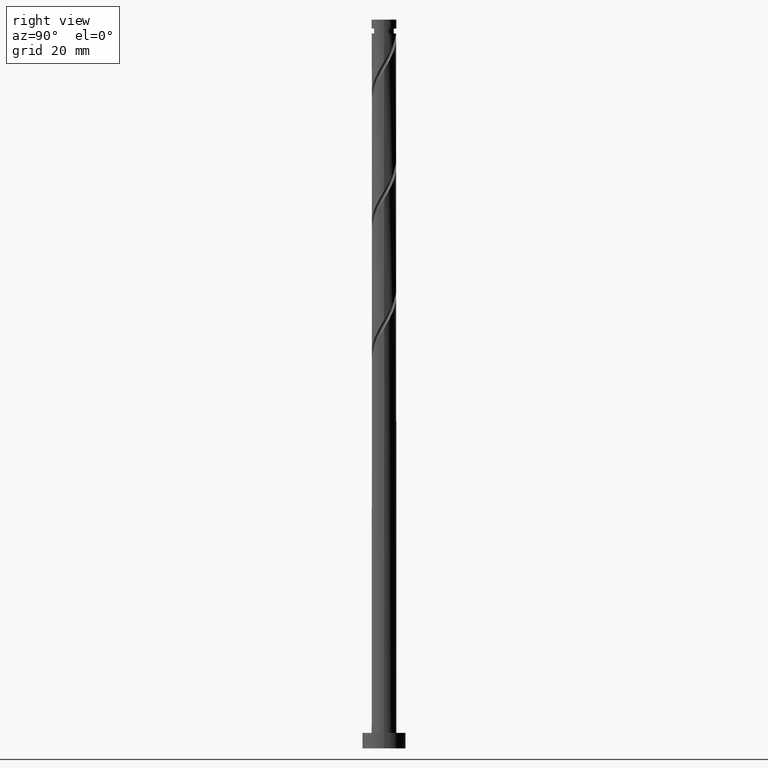
[diagram: clean part render]
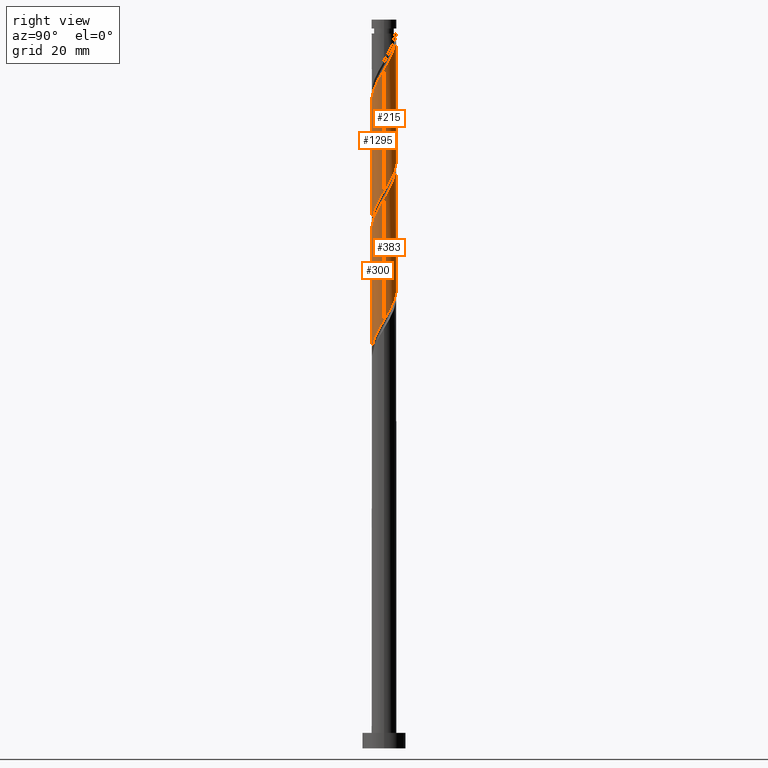
[diagram: same view with one multi-face feature highlighted, each face labeled with its STEP entity id]
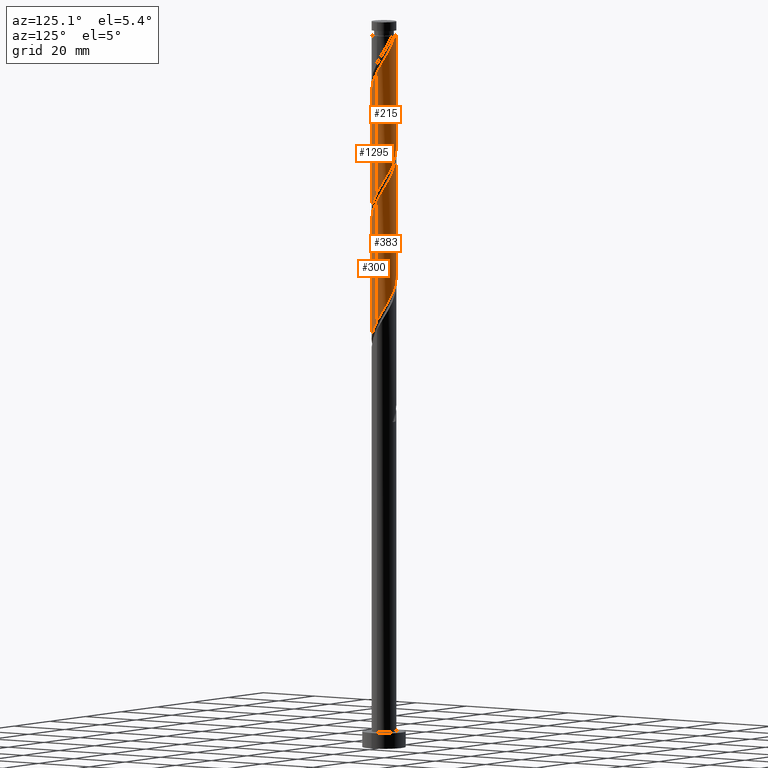
[diagram: same view with one multi-face feature highlighted, each face labeled with its STEP entity id]
A machine part, right view. The highlighted faces form ONE feature: a constant-radius fillet chain: 4 tangent blend faces with common blend radius 4 mm. The faces share edges in the B-rep.
A second angle (auxiliary view) of the same feature is appended — it is thin or edge-on in the first view.
Their STEP definitions:
[1] entity #300 (Cylinder):
#10 = CARTESIAN_POINT ( 'NONE',  ( 2.903067322541110329, -2.794296492670036436, 172.0295453672965493 ) ) ;
#14 = CARTESIAN_POINT ( 'NONE',  ( -1.710977332407543017, -3.615599060734964176, 124.7539043416555700 ) ) ;
#20 = CARTESIAN_POINT ( 'NONE',  ( -4.000000000000005329, -0.1590925213470726352, 156.5427174839607574 ) ) ;
#33 = CARTESIAN_POINT ( 'NONE',  ( 3.678270583471661581, -1.571726921181628933, 174.4333915211427382 ) ) ;
#38 = CARTESIAN_POINT ( 'NONE',  ( -1.271964123916561551, -3.823349321684220925, 125.5551863929375571 ) ) ;
#46 = VERTEX_POINT ( 'NONE', #882 ) ;
#54 = CARTESIAN_POINT ( 'NONE',  ( 2.526528931719818072, -3.101072646227875040, 171.2282633160145338 ) ) ;
#145 = CARTESIAN_POINT ( 'NONE',  ( -1.583270747538802148, -3.705286292331808173, 164.0167248544760525 ) ) ;
#170 = CARTESIAN_POINT ( 'NONE',  ( 1.583270747538797707, -3.705286292331802400, 130.3628787006298637 ) ) ;
#179 = CARTESIAN_POINT ( 'NONE',  ( 1.710977332407542795, -3.615599060734971726, 169.6256992134503889 ) ) ;
#192 = CARTESIAN_POINT ( 'NONE',  ( -0.3200157754540387534, -4.016650678315774492, 127.1577504955016877 ) ) ;
#226 = CARTESIAN_POINT ( 'NONE',  ( -3.947525597521974294, -0.6457876252366374636, 118.3436479313991470 ) ) ;
#238 = CARTESIAN_POINT ( 'NONE',  ( -3.999999999999998224, 5.339270056383372982E-15, 117.2677236534448184 ) ) ;
#257 = CARTESIAN_POINT ( 'NONE',  ( -4.000000000000005329, -3.709072756255089963E-15, 156.2785465683278119 ) ) ;
#258 = LINE ( 'NONE', #817, #902 ) ;
#291 = CARTESIAN_POINT ( 'NONE',  ( -3.987364772516044376, -0.3176825001445928165, 156.8051863929375997 ) ) ;
#300 = ADVANCED_FACE ( 'NONE', ( #851 ), #430, .T. ) ;
#322 = CARTESIAN_POINT ( 'NONE',  ( -3.795472800412709624, -1.262690073346326658, 158.4077504955017162 ) ) ;
#340 = CARTESIAN_POINT ( 'NONE',  ( 0.1652574756069088158, -3.996584787885279599, 127.9590325467837317 ) ) ;
#343 = CARTESIAN_POINT ( 'NONE',  ( -3.999999999999998224, 5.339270056383372193E-15, 117.2677236534448184 ) ) ;
#430 = CYLINDRICAL_SURFACE ( 'NONE', #1807, 4.000000000000000000 ) ;
#434 = CARTESIAN_POINT ( 'NONE',  ( -3.123849022751426396, -2.545085470315099574, 160.8115966493478197 ) ) ;
#459 = CARTESIAN_POINT ( 'NONE',  ( 3.999999999999999112, -0.1590925213470733013, 137.8368860711452157 ) ) ;
#495 = CARTESIAN_POINT ( 'NONE',  ( -2.903067322541106332, -2.794296492670029775, 122.3500581878093811 ) ) ;
#503 = VERTEX_POINT ( 'NONE', #343 ) ;
#577 = DIRECTION ( 'NONE',  ( -0.000000000000000000, -0.000000000000000000, -1.000000000000000000 ) ) ;
#592 = CARTESIAN_POINT ( 'NONE',  ( -3.948791133313483304, -0.8018362386540690556, 157.6064684442196722 ) ) ;
#595 = CARTESIAN_POINT ( 'NONE',  ( -2.526528931719815851, -3.101072646227869267, 123.1513402390914393 ) ) ;
#599 = CARTESIAN_POINT ( 'NONE',  ( -3.642154467511935945, -1.723543908038585926, 159.2090325467837602 ) ) ;
#612 = CARTESIAN_POINT ( 'NONE',  ( -2.149990540898524927, -3.407848799785708760, 123.9526222903734975 ) ) ;
#624 = EDGE_LOOP ( 'NONE', ( #1561, #1027, #1634, #1161 ) ) ;
#637 = CARTESIAN_POINT ( 'NONE',  ( 3.383001745131675175, -2.134314689176841195, 134.3692889570401690 ) ) ;
#728 = CARTESIAN_POINT ( 'NONE',  ( 4.000000000000000000, 4.898587196589412829E-16, 235.0000000000000284 ) ) ;
#744 = CARTESIAN_POINT ( 'NONE',  ( 3.642154467511929283, -1.723543908038582817, 135.1705710083221845 ) ) ;
#766 = CARTESIAN_POINT ( 'NONE',  ( -2.423996827517798103, -3.218715916066176685, 162.4141607519119646 ) ) ;
#797 = CARTESIAN_POINT ( 'NONE',  ( -3.869112783325347138, -1.125104012108395279, 119.1449299826811767 ) ) ;
#817 = CARTESIAN_POINT ( 'NONE',  ( -4.000000000000000000, 0.000000000000000000, 235.0000000000000284 ) ) ;
#851 = FACE_OUTER_BOUND ( 'NONE', #624, .T. ) ;
#864 = CARTESIAN_POINT ( 'NONE',  ( 3.487428383617971139, -2.018349830254860588, 173.6321094698606657 ) ) ;
#869 = CARTESIAN_POINT ( 'NONE',  ( -3.487428383617966698, -2.018349830254853483, 120.7474940852452647 ) ) ;
#875 = CARTESIAN_POINT ( 'NONE',  ( -2.773922925134612694, -2.881900693190638130, 161.6128787006298353 ) ) ;
#882 = CARTESIAN_POINT ( 'NONE',  ( 4.000000000000005329, 3.140747091990197197E-15, 177.1118799016610694 ) ) ;
#893 = VERTEX_POINT ( 'NONE', #257 ) ;
#902 = VECTOR ( 'NONE', #1672, 1000.000000000000000 ) ;
#912 = CARTESIAN_POINT ( 'NONE',  ( 0.6505307266678563849, -3.976518897454783374, 128.7603145980657757 ) ) ;
#941 = CARTESIAN_POINT ( 'NONE',  ( -3.678270583471656696, -1.571726921181625158, 119.9462120339632492 ) ) ;
#1006 =( BOUNDED_CURVE ( )  B_SPLINE_CURVE ( 2, ( #1618, #459, #1328, #1191, #1587, #744, #637, #1449, #1744, #1300, #1060, #170, #1610, #912, #340, #192, #1202, #38, #14, #612, #595, #495, #1071, #869, #941, #797, #226, #1225, #238 ),
 .UNSPECIFIED., .F., .T. ) 
 B_SPLINE_CURVE_WITH_KNOTS ( ( 3, 2, 2, 2, 2, 2, 2, 2, 2, 2, 2, 2, 2, 2, 3 ),
 ( 0.8045271625973832164, 0.8076923076923077094, 0.8173076923076922906, 0.8269230769230768718, 0.8365384615384615641, 0.8461538461538461453, 0.8557692307692307265, 0.8653846153846154188, 0.8750000000000000000, 0.8846153846153845812, 0.8942307692307692735, 0.9038461538461538547, 0.9134615384615384359, 0.9230769230769231282, 0.9295271625973835494 ),
 .UNSPECIFIED. ) 
 CURVE ( )  GEOMETRIC_REPRESENTATION_ITEM ( )  RATIONAL_B_SPLINE_CURVE ( ( 0.9061636035682786305, 0.9069090390690672798, 0.9090909090909238266, 0.9024626128164274785, 0.9090909090909238266, 0.9024626128164274785, 0.9090909090909238266, 0.9024626128164274785, 0.9090909090909238266, 0.9024626128164274785, 0.9090909090909238266, 0.9024626128164274785, 0.9090909090909238266, 0.9024626128164274785, 0.9090909090909238266, 0.9024626128164274785, 0.9090909090909238266, 0.9024626128164274785, 0.9090909090909238266, 0.9024626128164274785, 0.9090909090909238266, 0.9024626128164274785, 0.9090909090909238266, 0.9024626128164274785, 0.9090909090909238266, 0.9024626128164274785, 0.9090909090909238266, 0.9046444828382838033, 0.9061636035682788526 ) ) 
 REPRESENTATION_ITEM ( '' )  );
#1014 = CARTESIAN_POINT ( 'NONE',  ( -4.000000000000005329, -3.709072756255089963E-15, 156.2785465683278119 ) ) ;
#1022 = VERTEX_POINT ( 'NONE', #1316 ) ;
#1027 = ORIENTED_EDGE ( 'NONE', *, *, #1484, .F. ) ;
#1038 = LINE ( 'NONE', #728, #1690 ) ;
#1060 = CARTESIAN_POINT ( 'NONE',  ( 2.003633787528294796, -3.462001104198988877, 131.1641607519119646 ) ) ;
#1071 = CARTESIAN_POINT ( 'NONE',  ( -3.195247853079536959, -2.406323161462442073, 121.5487761365273371 ) ) ;
#1097 = EDGE_CURVE ( 'NONE', #46, #1022, #1038, .T. ) ;
#1107 = EDGE_CURVE ( 'NONE', #1022, #503, #1006, .T. ) ;
#1152 = CARTESIAN_POINT ( 'NONE',  ( 3.195247853079540512, -2.406323161462447402, 172.8308274185785933 ) ) ;
#1159 = CARTESIAN_POINT ( 'NONE',  ( 3.947525597521978291, -0.6457876252366412384, 176.0359556237067977 ) ) ;
#1161 = ORIENTED_EDGE ( 'NONE', *, *, #1107, .F. ) ;
#1166 = CARTESIAN_POINT ( 'NONE',  ( -3.383001745131681837, -2.134314689176842972, 160.0103145980658041 ) ) ;
#1187 = CARTESIAN_POINT ( 'NONE',  ( 0.7959899496852990142, -3.920000000000005258, 168.0231351108863294 ) ) ;
#1191 = CARTESIAN_POINT ( 'NONE',  ( 3.948791133313475754, -0.8018362386540693887, 136.7731351108863009 ) ) ;
#1202 = CARTESIAN_POINT ( 'NONE',  ( -0.7959899496852996803, -3.919999999999998153, 126.3564684442196580 ) ) ;
#1225 = CARTESIAN_POINT ( 'NONE',  ( -4.000000000000001776, -0.3250257541481672563, 117.8074243907931873 ) ) ;
#1297 = CARTESIAN_POINT ( 'NONE',  ( -2.003633787528300125, -3.462001104198992429, 163.2154428031940085 ) ) ;
#1300 = CARTESIAN_POINT ( 'NONE',  ( 2.423996827517791885, -3.218715916066174021, 131.9654428031939801 ) ) ;
#1316 = CARTESIAN_POINT ( 'NONE',  ( 3.999999999999999112, 4.232530604920153924E-15, 138.1010569867782181 ) ) ;
#1328 = CARTESIAN_POINT ( 'NONE',  ( 3.987364772516037270, -0.3176825001445965913, 137.5744171621683165 ) ) ;
#1340 = DIRECTION ( 'NONE',  ( -0.000000000000000000, -0.000000000000000000, -1.000000000000000000 ) ) ;
#1386 =( BOUNDED_CURVE ( )  B_SPLINE_CURVE ( 2, ( #1014, #20, #291, #592, #322, #599, #1166, #434, #875, #766, #1297, #145, #1469, #1741, #1573, #1711, #1187, #1719, #179, #1439, #54, #10, #1152, #864, #33, #1457, #1159, #1428, #1583 ),
 .UNSPECIFIED., .F., .T. ) 
 B_SPLINE_CURVE_WITH_KNOTS ( ( 3, 2, 2, 2, 2, 2, 2, 2, 2, 2, 2, 2, 2, 2, 3 ),
 ( 0.3045271625973832719, 0.3076923076923077094, 0.3173076923076922906, 0.3269230769230768718, 0.3365384615384615641, 0.3461538461538461453, 0.3557692307692307265, 0.3653846153846154188, 0.3750000000000000000, 0.3846153846153845812, 0.3942307692307692735, 0.4038461538461538547, 0.4134615384615384359, 0.4230769230769231282, 0.4295271625973834939 ),
 .UNSPECIFIED. ) 
 CURVE ( )  GEOMETRIC_REPRESENTATION_ITEM ( )  RATIONAL_B_SPLINE_CURVE ( ( 0.9061636035682849588, 0.9069090390690737191, 0.9090909090909303769, 0.9024626128164336958, 0.9090909090909303769, 0.9024626128164336958, 0.9090909090909303769, 0.9024626128164336958, 0.9090909090909303769, 0.9024626128164336958, 0.9090909090909303769, 0.9024626128164336958, 0.9090909090909303769, 0.9024626128164336958, 0.9090909090909303769, 0.9024626128164336958, 0.9090909090909303769, 0.9024626128164336958, 0.9090909090909303769, 0.9024626128164336958, 0.9090909090909303769, 0.9024626128164336958, 0.9090909090909303769, 0.9024626128164336958, 0.9090909090909303769, 0.9024626128164336958, 0.9090909090909303769, 0.9046444828382902426, 0.9061636035682851809 ) ) 
 REPRESENTATION_ITEM ( '' )  );
#1401 = CARTESIAN_POINT ( 'NONE',  ( 0.000000000000000000, 0.000000000000000000, 235.0000000000000284 ) ) ;
#1428 = CARTESIAN_POINT ( 'NONE',  ( 4.000000000000006217, -0.3250257541481718637, 176.5721791643128142 ) ) ;
#1439 = CARTESIAN_POINT ( 'NONE',  ( 2.149990540898526259, -3.407848799785715865, 170.4269812647324898 ) ) ;
#1449 = CARTESIAN_POINT ( 'NONE',  ( 3.123849022751419291, -2.545085470315097353, 133.5680069057580397 ) ) ;
#1457 = CARTESIAN_POINT ( 'NONE',  ( 3.869112783325352023, -1.125104012108400164, 175.2346735724247822 ) ) ;
#1469 = CARTESIAN_POINT ( 'NONE',  ( -1.116900737103331487, -3.840902594893298883, 164.8180069057580965 ) ) ;
#1484 = EDGE_CURVE ( 'NONE', #893, #46, #1386, .T. ) ;
#1544 = DIRECTION ( 'NONE',  ( -1.000000000000000000, 0.000000000000000000, 0.000000000000000000 ) ) ;
#1561 = ORIENTED_EDGE ( 'NONE', *, *, #1097, .F. ) ;
#1573 = CARTESIAN_POINT ( 'NONE',  ( -0.1652574756069124517, -3.996584787885285817, 166.4205710083221561 ) ) ;
#1583 = CARTESIAN_POINT ( 'NONE',  ( 4.000000000000005329, 3.140747091990197197E-15, 177.1118799016610694 ) ) ;
#1587 = CARTESIAN_POINT ( 'NONE',  ( 3.795472800412702075, -1.262690073346327768, 135.9718530596042285 ) ) ;
#1610 = CARTESIAN_POINT ( 'NONE',  ( 1.116900737103328378, -3.840902594893293109, 129.5615966493478481 ) ) ;
#1618 = CARTESIAN_POINT ( 'NONE',  ( 3.999999999999999112, 4.232530604920153924E-15, 138.1010569867782181 ) ) ;
#1634 = ORIENTED_EDGE ( 'NONE', *, *, #1791, .T. ) ;
#1672 = DIRECTION ( 'NONE',  ( -0.000000000000000000, -0.000000000000000000, -1.000000000000000000 ) ) ;
#1690 = VECTOR ( 'NONE', #1340, 1000.000000000000000 ) ;
#1711 = CARTESIAN_POINT ( 'NONE',  ( 0.3200157754540359778, -4.016650678315780709, 167.2218530596042285 ) ) ;
#1719 = CARTESIAN_POINT ( 'NONE',  ( 1.271964123916560885, -3.823349321684228919, 168.8244171621684018 ) ) ;
#1741 = CARTESIAN_POINT ( 'NONE',  ( -0.6505307266678609368, -3.976518897454789592, 165.6192889570401690 ) ) ;
#1744 = CARTESIAN_POINT ( 'NONE',  ( 2.773922925134606920, -2.881900693190635021, 132.7667248544760525 ) ) ;
#1791 = EDGE_CURVE ( 'NONE', #893, #503, #258, .T. ) ;
#1807 = AXIS2_PLACEMENT_3D ( 'NONE', #1401, #577, #1544 ) ;
[2] entity #383 (Cylinder):
#42 = CARTESIAN_POINT ( 'NONE',  ( -4.000000000000005329, 4.486781559985995327E-17, 197.9452132349944691 ) ) ;
#46 = VERTEX_POINT ( 'NONE', #882 ) ;
#75 = CARTESIAN_POINT ( 'NONE',  ( 3.948791133313483304, 0.8018362386540686115, 178.4398017775529866 ) ) ;
#81 = CARTESIAN_POINT ( 'NONE',  ( 3.678270583471657584, 1.571726921181624492, 140.7795453672965209 ) ) ;
#116 = CARTESIAN_POINT ( 'NONE',  ( 1.710977332407545237, 3.615599060734962844, 145.5872376749888701 ) ) ;
#168 = ORIENTED_EDGE ( 'NONE', *, *, #1766, .F. ) ;
#187 = CARTESIAN_POINT ( 'NONE',  ( 3.987364772516044376, 0.3176825001445913732, 177.6385197262709141 ) ) ;
#286 = DIRECTION ( 'NONE',  ( -1.000000000000000000, 0.000000000000000000, 0.000000000000000000 ) ) ;
#353 = CARTESIAN_POINT ( 'NONE',  ( 3.795472800412709624, 1.262690073346324660, 179.2410838288350590 ) ) ;
#376 = CARTESIAN_POINT ( 'NONE',  ( -1.116900737103328378, 3.840902594893293109, 150.3949299826811909 ) ) ;
#383 = ADVANCED_FACE ( 'NONE', ( #841 ), #1280, .T. ) ;
#392 = CARTESIAN_POINT ( 'NONE',  ( -4.000000000000000000, -5.817860089448548578E-15, 158.9343903201115324 ) ) ;
#454 = ORIENTED_EDGE ( 'NONE', *, *, #1759, .F. ) ;
#462 = CARTESIAN_POINT ( 'NONE',  ( -1.271964123916561551, 3.823349321684228919, 189.6577504955017446 ) ) ;
#464 =( BOUNDED_CURVE ( )  B_SPLINE_CURVE ( 2, ( #392, #1664, #973, #1119, #535, #1382, #1400, #1804, #1368, #800, #983, #549, #376, #528, #1811, #1796, #823, #1511, #116, #944, #1395, #1090, #678, #1524, #81, #697, #1102, #663, #518 ),
 .UNSPECIFIED., .F., .T. ) 
 B_SPLINE_CURVE_WITH_KNOTS ( ( 3, 2, 2, 2, 2, 2, 2, 2, 2, 2, 2, 2, 2, 2, 3 ),
 ( 0.6795271625973832164, 0.6826923076923077094, 0.6923076923076922906, 0.7019230769230768718, 0.7115384615384615641, 0.7211538461538461453, 0.7307692307692307265, 0.7403846153846154188, 0.7500000000000000000, 0.7596153846153845812, 0.7692307692307692735, 0.7788461538461538547, 0.7884615384615384359, 0.7980769230769231282, 0.8045271625973832164 ),
 .UNSPECIFIED. ) 
 CURVE ( )  GEOMETRIC_REPRESENTATION_ITEM ( )  RATIONAL_B_SPLINE_CURVE ( ( 0.9061636035682786305, 0.9069090390690672798, 0.9090909090909238266, 0.9024626128164274785, 0.9090909090909238266, 0.9024626128164274785, 0.9090909090909238266, 0.9024626128164274785, 0.9090909090909238266, 0.9024626128164274785, 0.9090909090909238266, 0.9024626128164274785, 0.9090909090909238266, 0.9024626128164274785, 0.9090909090909238266, 0.9024626128164274785, 0.9090909090909238266, 0.9024626128164274785, 0.9090909090909238266, 0.9024626128164274785, 0.9090909090909238266, 0.9024626128164274785, 0.9090909090909238266, 0.9024626128164274785, 0.9090909090909238266, 0.9024626128164274785, 0.9090909090909238266, 0.9046444828382840253, 0.9061636035682786305 ) ) 
 REPRESENTATION_ITEM ( '' )  );
#488 = CARTESIAN_POINT ( 'NONE',  ( -3.678270583471661581, 1.571726921181628933, 195.2667248544760525 ) ) ;
#500 = CARTESIAN_POINT ( 'NONE',  ( -2.149990540898527591, 3.407848799785715421, 191.2603145980658326 ) ) ;
#518 = CARTESIAN_POINT ( 'NONE',  ( 3.999999999999999112, 4.232530604920153924E-15, 138.1010569867782181 ) ) ;
#528 = CARTESIAN_POINT ( 'NONE',  ( -0.6505307266678578282, 3.976518897454783374, 149.5936479313990901 ) ) ;
#535 = CARTESIAN_POINT ( 'NONE',  ( -3.795472800412702519, 1.262690073346326880, 156.8051863929375997 ) ) ;
#549 = CARTESIAN_POINT ( 'NONE',  ( -1.583270747538798817, 3.705286292331802400, 151.1962120339632349 ) ) ;
#586 = VERTEX_POINT ( 'NONE', #1500 ) ;
#617 = CARTESIAN_POINT ( 'NONE',  ( -2.526528931719818960, 3.101072646227875040, 192.0615966493478481 ) ) ;
#642 = CARTESIAN_POINT ( 'NONE',  ( 3.383001745131681837, 2.134314689176843416, 180.8436479313991185 ) ) ;
#652 = ORIENTED_EDGE ( 'NONE', *, *, #1595, .F. ) ;
#663 = CARTESIAN_POINT ( 'NONE',  ( 3.999999999999998224, 0.3250257541481830770, 138.6407577241265301 ) ) ;
#678 = CARTESIAN_POINT ( 'NONE',  ( 3.195247853079536959, 2.406323161462441185, 142.3821094698607226 ) ) ;
#697 = CARTESIAN_POINT ( 'NONE',  ( 3.869112783325347138, 1.125104012108393059, 139.9782633160144769 ) ) ;
#728 = CARTESIAN_POINT ( 'NONE',  ( 4.000000000000000000, 4.898587196589412829E-16, 235.0000000000000284 ) ) ;
#761 = CARTESIAN_POINT ( 'NONE',  ( -3.195247853079541400, 2.406323161462446958, 193.6641607519119361 ) ) ;
#784 = CARTESIAN_POINT ( 'NONE',  ( 2.773922925134613582, 2.881900693190637686, 182.4462120339632065 ) ) ;
#792 = CARTESIAN_POINT ( 'NONE',  ( 2.423996827517799879, 3.218715916066175797, 183.2474940852452789 ) ) ;
#800 = CARTESIAN_POINT ( 'NONE',  ( -2.423996827517791885, 3.218715916066172689, 152.7987761365272945 ) ) ;
#823 = CARTESIAN_POINT ( 'NONE',  ( 0.7959899496853001244, 3.919999999999998153, 147.1898017775529866 ) ) ;
#829 =( BOUNDED_CURVE ( )  B_SPLINE_CURVE ( 2, ( #1747, #1042, #187, #75, #353, #1218, #642, #1763, #784, #792, #1319, #1494, #1080, #1065, #1590, #1074, #1466, #462, #1207, #500, #617, #1182, #761, #1769, #488, #1360, #1331, #891, #1621 ),
 .UNSPECIFIED., .F., .T. ) 
 B_SPLINE_CURVE_WITH_KNOTS ( ( 3, 2, 2, 2, 2, 2, 2, 2, 2, 2, 2, 2, 2, 2, 3 ),
 ( 0.4295271625973834939, 0.4326923076923077094, 0.4423076923076922906, 0.4519230769230768718, 0.4615384615384615641, 0.4711538461538461453, 0.4807692307692307265, 0.4903846153846154188, 0.5000000000000000000, 0.5096153846153845812, 0.5192307692307691624, 0.5288461538461538547, 0.5384615384615384359, 0.5480769230769231282, 0.5545271625973834384 ),
 .UNSPECIFIED. ) 
 CURVE ( )  GEOMETRIC_REPRESENTATION_ITEM ( )  RATIONAL_B_SPLINE_CURVE ( ( 0.9061636035682851809, 0.9069090390690739412, 0.9090909090909303769, 0.9024626128164336958, 0.9090909090909303769, 0.9024626128164336958, 0.9090909090909303769, 0.9024626128164336958, 0.9090909090909303769, 0.9024626128164336958, 0.9090909090909303769, 0.9024626128164336958, 0.9090909090909303769, 0.9024626128164336958, 0.9090909090909303769, 0.9024626128164336958, 0.9090909090909303769, 0.9024626128164336958, 0.9090909090909303769, 0.9024626128164336958, 0.9090909090909303769, 0.9024626128164336958, 0.9090909090909303769, 0.9024626128164336958, 0.9090909090909303769, 0.9024626128164336958, 0.9090909090909303769, 0.9046444828382902426, 0.9061636035682851809 ) ) 
 REPRESENTATION_ITEM ( '' )  );
#841 = FACE_OUTER_BOUND ( 'NONE', #1100, .T. ) ;
#882 = CARTESIAN_POINT ( 'NONE',  ( 4.000000000000005329, 3.140747091990197197E-15, 177.1118799016610694 ) ) ;
#891 = CARTESIAN_POINT ( 'NONE',  ( -4.000000000000006217, 0.3250257541481747503, 197.4055124976461286 ) ) ;
#944 = CARTESIAN_POINT ( 'NONE',  ( 2.149990540898525371, 3.407848799785708760, 144.7859556237068261 ) ) ;
#965 = AXIS2_PLACEMENT_3D ( 'NONE', #1409, #1827, #286 ) ;
#973 = CARTESIAN_POINT ( 'NONE',  ( -3.987364772516037270, 0.3176825001445944818, 158.4077504955016593 ) ) ;
#983 = CARTESIAN_POINT ( 'NONE',  ( -2.003633787528295240, 3.462001104198988877, 151.9974940852453074 ) ) ;
#1022 = VERTEX_POINT ( 'NONE', #1316 ) ;
#1038 = LINE ( 'NONE', #728, #1690 ) ;
#1042 = CARTESIAN_POINT ( 'NONE',  ( 4.000000000000004441, 0.1590925213470829880, 177.3760508172940717 ) ) ;
#1065 = CARTESIAN_POINT ( 'NONE',  ( 0.6505307266678614919, 3.976518897454789592, 186.4526222903735118 ) ) ;
#1074 = CARTESIAN_POINT ( 'NONE',  ( -0.3200157754540355892, 4.016650678315782486, 188.0551863929375997 ) ) ;
#1080 = CARTESIAN_POINT ( 'NONE',  ( 1.116900737103333263, 3.840902594893298883, 185.6513402390914678 ) ) ;
#1090 = CARTESIAN_POINT ( 'NONE',  ( 2.903067322541107220, 2.794296492670029775, 143.1833915211427382 ) ) ;
#1097 = EDGE_CURVE ( 'NONE', #46, #1022, #1038, .T. ) ;
#1100 = EDGE_LOOP ( 'NONE', ( #652, #1477, #454, #168 ) ) ;
#1102 = CARTESIAN_POINT ( 'NONE',  ( 3.947525597521974294, 0.6457876252366383518, 139.1769812647325182 ) ) ;
#1119 = CARTESIAN_POINT ( 'NONE',  ( -3.948791133313475754, 0.8018362386540688336, 157.6064684442196722 ) ) ;
#1182 = CARTESIAN_POINT ( 'NONE',  ( -2.903067322541111217, 2.794296492670035992, 192.8628787006298921 ) ) ;
#1207 = CARTESIAN_POINT ( 'NONE',  ( -1.710977332407544127, 3.615599060734970838, 190.4590325467837602 ) ) ;
#1218 = CARTESIAN_POINT ( 'NONE',  ( 3.642154467511936389, 1.723543908038583705, 180.0423658801171030 ) ) ;
#1280 = CYLINDRICAL_SURFACE ( 'NONE', #965, 4.000000000000000000 ) ;
#1316 = CARTESIAN_POINT ( 'NONE',  ( 3.999999999999999112, 4.232530604920153924E-15, 138.1010569867782181 ) ) ;
#1319 = CARTESIAN_POINT ( 'NONE',  ( 2.003633787528301013, 3.462001104198992429, 184.0487761365273229 ) ) ;
#1331 = CARTESIAN_POINT ( 'NONE',  ( -3.947525597521978291, 0.6457876252366409053, 196.8692889570401405 ) ) ;
#1340 = DIRECTION ( 'NONE',  ( -0.000000000000000000, -0.000000000000000000, -1.000000000000000000 ) ) ;
#1360 = CARTESIAN_POINT ( 'NONE',  ( -3.869112783325353799, 1.125104012108398388, 196.0680069057581534 ) ) ;
#1368 = CARTESIAN_POINT ( 'NONE',  ( -2.773922925134606920, 2.881900693190635021, 153.6000581878093669 ) ) ;
#1382 = CARTESIAN_POINT ( 'NONE',  ( -3.642154467511929283, 1.723543908038583483, 156.0039043416554989 ) ) ;
#1388 = CARTESIAN_POINT ( 'NONE',  ( -4.000000000000000000, 0.000000000000000000, 235.0000000000000284 ) ) ;
#1395 = CARTESIAN_POINT ( 'NONE',  ( 2.526528931719817628, 3.101072646227867491, 143.9846735724247253 ) ) ;
#1400 = CARTESIAN_POINT ( 'NONE',  ( -3.383001745131675175, 2.134314689176840751, 155.2026222903734833 ) ) ;
#1403 = VECTOR ( 'NONE', #1519, 1000.000000000000000 ) ;
#1409 = CARTESIAN_POINT ( 'NONE',  ( 0.000000000000000000, 0.000000000000000000, 235.0000000000000284 ) ) ;
#1466 = CARTESIAN_POINT ( 'NONE',  ( -0.7959899496852987921, 3.920000000000005258, 188.8564684442196437 ) ) ;
#1477 = ORIENTED_EDGE ( 'NONE', *, *, #1097, .T. ) ;
#1494 = CARTESIAN_POINT ( 'NONE',  ( 1.583270747538803036, 3.705286292331808173, 184.8500581878093669 ) ) ;
#1500 = CARTESIAN_POINT ( 'NONE',  ( -4.000000000000000000, -5.817860089448549367E-15, 158.9343903201115324 ) ) ;
#1511 = CARTESIAN_POINT ( 'NONE',  ( 1.271964123916561995, 3.823349321684220925, 146.3885197262708857 ) ) ;
#1519 = DIRECTION ( 'NONE',  ( -0.000000000000000000, -0.000000000000000000, -1.000000000000000000 ) ) ;
#1524 = CARTESIAN_POINT ( 'NONE',  ( 3.487428383617966698, 2.018349830254851707, 141.5808274185785933 ) ) ;
#1590 = CARTESIAN_POINT ( 'NONE',  ( 0.1652574756069146444, 3.996584787885285817, 187.2539043416555558 ) ) ;
#1595 = EDGE_CURVE ( 'NONE', #46, #1652, #829, .T. ) ;
#1621 = CARTESIAN_POINT ( 'NONE',  ( -4.000000000000005329, 4.486781559985995327E-17, 197.9452132349944691 ) ) ;
#1652 = VERTEX_POINT ( 'NONE', #42 ) ;
#1664 = CARTESIAN_POINT ( 'NONE',  ( -3.999999999999999112, 0.1590925213470713584, 158.6702194044785017 ) ) ;
#1690 = VECTOR ( 'NONE', #1340, 1000.000000000000000 ) ;
#1747 = CARTESIAN_POINT ( 'NONE',  ( 4.000000000000005329, 3.140747091990197197E-15, 177.1118799016610694 ) ) ;
#1759 = EDGE_CURVE ( 'NONE', #586, #1022, #464, .T. ) ;
#1763 = CARTESIAN_POINT ( 'NONE',  ( 3.123849022751427729, 2.545085470315096909, 181.6449299826811341 ) ) ;
#1766 = EDGE_CURVE ( 'NONE', #1652, #586, #1778, .T. ) ;
#1769 = CARTESIAN_POINT ( 'NONE',  ( -3.487428383617972028, 2.018349830254859700, 194.4654428031940370 ) ) ;
#1778 = LINE ( 'NONE', #1388, #1403 ) ;
#1796 = CARTESIAN_POINT ( 'NONE',  ( 0.3200157754540378652, 4.016650678315774492, 147.9910838288350021 ) ) ;
#1804 = CARTESIAN_POINT ( 'NONE',  ( -3.123849022751420179, 2.545085470315096465, 154.4013402390914962 ) ) ;
#1811 = CARTESIAN_POINT ( 'NONE',  ( -0.1652574756069100093, 3.996584787885279599, 148.7923658801170461 ) ) ;
#1827 = DIRECTION ( 'NONE',  ( -0.000000000000000000, -0.000000000000000000, -1.000000000000000000 ) ) ;
[3] entity #1295 (Cylinder):
#42 = CARTESIAN_POINT ( 'NONE',  ( -4.000000000000005329, 4.486781559985995327E-17, 197.9452132349944691 ) ) ;
#82 = CARTESIAN_POINT ( 'NONE',  ( 4.000000000000002665, -0.3250257541481968993, 218.2388458309794146 ) ) ;
#100 = CARTESIAN_POINT ( 'NONE',  ( -0.3200157754540387534, -4.016650678315774492, 168.8244171621683734 ) ) ;
#104 = EDGE_CURVE ( 'NONE', #1652, #399, #1736, .T. ) ;
#106 = CARTESIAN_POINT ( 'NONE',  ( 3.999999999999999112, 4.232530604920153924E-15, 179.7677236534448468 ) ) ;
#135 = CARTESIAN_POINT ( 'NONE',  ( 4.000000000000000000, 4.898587196589412829E-16, 235.0000000000000284 ) ) ;
#189 = CARTESIAN_POINT ( 'NONE',  ( -4.000000000000005329, 4.486781559985995327E-17, 197.9452132349944691 ) ) ;
#218 = CARTESIAN_POINT ( 'NONE',  ( 2.773922925134606920, -2.881900693190635021, 174.4333915211427950 ) ) ;
#219 = CARTESIAN_POINT ( 'NONE',  ( 3.487428383617971139, -2.018349830254860588, 215.2987761365273514 ) ) ;
#229 = CARTESIAN_POINT ( 'NONE',  ( 3.948791133313475754, -0.8018362386540693887, 178.4398017775529581 ) ) ;
#242 = CARTESIAN_POINT ( 'NONE',  ( -3.487428383617966698, -2.018349830254853483, 162.4141607519119361 ) ) ;
#243 = CARTESIAN_POINT ( 'NONE',  ( 3.678270583471661581, -1.571726921181628933, 216.1000581878093953 ) ) ;
#248 = FACE_OUTER_BOUND ( 'NONE', #348, .T. ) ;
#253 = CARTESIAN_POINT ( 'NONE',  ( -1.116900737103331487, -3.840902594893298883, 206.4846735724247537 ) ) ;
#256 = LINE ( 'NONE', #135, #267 ) ;
#267 = VECTOR ( 'NONE', #561, 1000.000000000000000 ) ;
#324 = VERTEX_POINT ( 'NONE', #410 ) ;
#348 = EDGE_LOOP ( 'NONE', ( #646, #978, #777, #457 ) ) ;
#367 = CARTESIAN_POINT ( 'NONE',  ( 3.987364772516037270, -0.3176825001445965913, 179.2410838288349737 ) ) ;
#377 = CARTESIAN_POINT ( 'NONE',  ( -0.1652574756069124517, -3.996584787885285817, 208.0872376749888417 ) ) ;
#387 = CARTESIAN_POINT ( 'NONE',  ( -2.526528931719815851, -3.101072646227869267, 164.8180069057581250 ) ) ;
#399 = VERTEX_POINT ( 'NONE', #1308 ) ;
#401 = CARTESIAN_POINT ( 'NONE',  ( 3.123849022751419291, -2.545085470315097353, 175.2346735724247537 ) ) ;
#410 = CARTESIAN_POINT ( 'NONE',  ( 3.999999999999999112, 4.232530604920153924E-15, 179.7677236534448468 ) ) ;
#457 = ORIENTED_EDGE ( 'NONE', *, *, #1806, .F. ) ;
#482 = CARTESIAN_POINT ( 'NONE',  ( -3.869112783325347138, -1.125104012108395279, 160.8115966493478481 ) ) ;
#519 = CARTESIAN_POINT ( 'NONE',  ( -3.987364772516044376, -0.3176825001445928165, 198.4718530596042569 ) ) ;
#529 = CARTESIAN_POINT ( 'NONE',  ( -2.423996827517798103, -3.218715916066176685, 204.0808274185786502 ) ) ;
#536 = CARTESIAN_POINT ( 'NONE',  ( -3.795472800412709624, -1.262690073346326658, 200.0744171621683449 ) ) ;
#542 = CARTESIAN_POINT ( 'NONE',  ( -1.710977332407543017, -3.615599060734964176, 166.4205710083222129 ) ) ;
#543 = CARTESIAN_POINT ( 'NONE',  ( 0.3200157754540359778, -4.016650678315780709, 208.8885197262708857 ) ) ;
#561 = DIRECTION ( 'NONE',  ( -0.000000000000000000, -0.000000000000000000, -1.000000000000000000 ) ) ;
#586 = VERTEX_POINT ( 'NONE', #1500 ) ;
#646 = ORIENTED_EDGE ( 'NONE', *, *, #1343, .F. ) ;
#673 = CARTESIAN_POINT ( 'NONE',  ( -0.7959899496852996803, -3.919999999999998153, 168.0231351108863294 ) ) ;
#679 = CARTESIAN_POINT ( 'NONE',  ( -2.003633787528300125, -3.462001104198992429, 204.8821094698606657 ) ) ;
#685 = CARTESIAN_POINT ( 'NONE',  ( 3.642154467511929283, -1.723543908038582817, 176.8372376749888133 ) ) ;
#686 = CARTESIAN_POINT ( 'NONE',  ( 1.710977332407542795, -3.615599060734971726, 211.2923658801170461 ) ) ;
#777 = ORIENTED_EDGE ( 'NONE', *, *, #1766, .T. ) ;
#801 = CARTESIAN_POINT ( 'NONE',  ( 3.947525597521978291, -0.6457876252366412384, 217.7026222903734833 ) ) ;
#810 = CARTESIAN_POINT ( 'NONE',  ( 1.583270747538797707, -3.705286292331802400, 172.0295453672965493 ) ) ;
#811 = CARTESIAN_POINT ( 'NONE',  ( 1.271964123916560885, -3.823349321684228919, 210.4910838288350021 ) ) ;
#818 = CARTESIAN_POINT ( 'NONE',  ( 4.000000000000005329, -5.533697257316060780E-16, 218.7785465683277550 ) ) ;
#830 = CARTESIAN_POINT ( 'NONE',  ( 4.000000000000000000, -0.1590925213470677779, 179.5035527378118445 ) ) ;
#840 = CARTESIAN_POINT ( 'NONE',  ( -3.947525597521974294, -0.6457876252366374636, 160.0103145980658041 ) ) ;
#945 = CARTESIAN_POINT ( 'NONE',  ( -4.000000000000005329, -0.1590925213470810173, 198.2093841506274430 ) ) ;
#954 = CARTESIAN_POINT ( 'NONE',  ( 0.1652574756069088158, -3.996584787885279599, 169.6256992134504458 ) ) ;
#955 = CARTESIAN_POINT ( 'NONE',  ( -2.773922925134612694, -2.881900693190638130, 203.2795453672965778 ) ) ;
#966 = CARTESIAN_POINT ( 'NONE',  ( -3.195247853079536959, -2.406323161462442073, 163.2154428031939801 ) ) ;
#978 = ORIENTED_EDGE ( 'NONE', *, *, #104, .F. ) ;
#979 = DIRECTION ( 'NONE',  ( -1.000000000000000000, 0.000000000000000000, 0.000000000000000000 ) ) ;
#1094 = CARTESIAN_POINT ( 'NONE',  ( 3.795472800412702075, -1.262690073346327768, 177.6385197262708857 ) ) ;
#1103 = CARTESIAN_POINT ( 'NONE',  ( 0.7959899496852990142, -3.920000000000005258, 209.6898017775529297 ) ) ;
#1112 = CARTESIAN_POINT ( 'NONE',  ( -2.903067322541106332, -2.794296492670029775, 164.0167248544759673 ) ) ;
#1130 = DIRECTION ( 'NONE',  ( -0.000000000000000000, -0.000000000000000000, -1.000000000000000000 ) ) ;
#1231 = CARTESIAN_POINT ( 'NONE',  ( 2.003633787528294796, -3.462001104198988877, 172.8308274185786502 ) ) ;
#1238 = CARTESIAN_POINT ( 'NONE',  ( -1.271964123916561551, -3.823349321684220925, 167.2218530596042001 ) ) ;
#1245 = CARTESIAN_POINT ( 'NONE',  ( -2.149990540898524927, -3.407848799785708760, 165.6192889570401121 ) ) ;
#1246 = CARTESIAN_POINT ( 'NONE',  ( -3.383001745131681837, -2.134314689176842972, 201.6769812647324898 ) ) ;
#1253 = CARTESIAN_POINT ( 'NONE',  ( 3.383001745131675175, -2.134314689176841195, 176.0359556237067977 ) ) ;
#1254 = CARTESIAN_POINT ( 'NONE',  ( 2.526528931719818072, -3.101072646227875040, 212.8949299826812194 ) ) ;
#1295 = ADVANCED_FACE ( 'NONE', ( #248 ), #1839, .T. ) ;
#1308 = CARTESIAN_POINT ( 'NONE',  ( 4.000000000000005329, -5.533697257316060780E-16, 218.7785465683277550 ) ) ;
#1343 = EDGE_CURVE ( 'NONE', #399, #324, #256, .T. ) ;
#1369 = CARTESIAN_POINT ( 'NONE',  ( 3.195247853079540512, -2.406323161462447402, 214.4974940852452789 ) ) ;
#1388 = CARTESIAN_POINT ( 'NONE',  ( -4.000000000000000000, 0.000000000000000000, 235.0000000000000284 ) ) ;
#1389 = CARTESIAN_POINT ( 'NONE',  ( 3.869112783325352023, -1.125104012108400164, 216.9013402390914109 ) ) ;
#1403 = VECTOR ( 'NONE', #1519, 1000.000000000000000 ) ;
#1500 = CARTESIAN_POINT ( 'NONE',  ( -4.000000000000000000, -5.817860089448549367E-15, 158.9343903201115324 ) ) ;
#1501 = CARTESIAN_POINT ( 'NONE',  ( 1.116900737103328378, -3.840902594893293109, 171.2282633160145053 ) ) ;
#1502 = CARTESIAN_POINT ( 'NONE',  ( 2.903067322541110329, -2.794296492670036436, 213.6962120339632065 ) ) ;
#1512 = CARTESIAN_POINT ( 'NONE',  ( -3.123849022751426396, -2.545085470315099574, 202.4782633160145338 ) ) ;
#1519 = DIRECTION ( 'NONE',  ( -0.000000000000000000, -0.000000000000000000, -1.000000000000000000 ) ) ;
#1520 = CARTESIAN_POINT ( 'NONE',  ( -3.948791133313483304, -0.8018362386540690556, 199.2731351108863578 ) ) ;
#1525 = CARTESIAN_POINT ( 'NONE',  ( -3.642154467511935945, -1.723543908038585926, 200.8756992134504458 ) ) ;
#1532 = CARTESIAN_POINT ( 'NONE',  ( 2.423996827517791885, -3.218715916066174021, 173.6321094698607226 ) ) ;
#1597 = CARTESIAN_POINT ( 'NONE',  ( -4.000000000000000000, -5.817860089448548578E-15, 158.9343903201115324 ) ) ;
#1640 = CARTESIAN_POINT ( 'NONE',  ( 2.149990540898526259, -3.407848799785715865, 212.0936479313991470 ) ) ;
#1647 = CARTESIAN_POINT ( 'NONE',  ( 0.6505307266678563849, -3.976518897454783374, 170.4269812647324329 ) ) ;
#1648 = CARTESIAN_POINT ( 'NONE',  ( -1.583270747538802148, -3.705286292331808173, 205.6833915211427382 ) ) ;
#1652 = VERTEX_POINT ( 'NONE', #42 ) ;
#1677 = CARTESIAN_POINT ( 'NONE',  ( -3.678270583471656696, -1.571726921181625158, 161.6128787006298637 ) ) ;
#1736 =( BOUNDED_CURVE ( )  B_SPLINE_CURVE ( 2, ( #189, #945, #519, #1520, #536, #1525, #1246, #1512, #955, #529, #679, #1648, #253, #1779, #377, #543, #1103, #811, #686, #1640, #1254, #1502, #1369, #219, #243, #1389, #801, #82, #818 ),
 .UNSPECIFIED., .F., .T. ) 
 B_SPLINE_CURVE_WITH_KNOTS ( ( 3, 2, 2, 2, 2, 2, 2, 2, 2, 2, 2, 2, 2, 2, 3 ),
 ( 0.5545271625973834384, 0.5576923076923077094, 0.5673076923076922906, 0.5769230769230768718, 0.5865384615384615641, 0.5961538461538461453, 0.6057692307692308376, 0.6153846153846154188, 0.6250000000000000000, 0.6346153846153845812, 0.6442307692307691624, 0.6538461538461538547, 0.6634615384615384359, 0.6730769230769231282, 0.6795271625973829943 ),
 .UNSPECIFIED. ) 
 CURVE ( )  GEOMETRIC_REPRESENTATION_ITEM ( )  RATIONAL_B_SPLINE_CURVE ( ( 0.9061636035682851809, 0.9069090390690738301, 0.9090909090909303769, 0.9024626128164336958, 0.9090909090909303769, 0.9024626128164336958, 0.9090909090909303769, 0.9024626128164336958, 0.9090909090909303769, 0.9024626128164336958, 0.9090909090909303769, 0.9024626128164336958, 0.9090909090909303769, 0.9024626128164336958, 0.9090909090909303769, 0.9024626128164336958, 0.9090909090909303769, 0.9024626128164336958, 0.9090909090909303769, 0.9024626128164336958, 0.9090909090909303769, 0.9024626128164336958, 0.9090909090909303769, 0.9024626128164336958, 0.9090909090909303769, 0.9024626128164336958, 0.9090909090909303769, 0.9046444828382905756, 0.9061636035682849588 ) ) 
 REPRESENTATION_ITEM ( '' )  );
#1766 = EDGE_CURVE ( 'NONE', #1652, #586, #1778, .T. ) ;
#1778 = LINE ( 'NONE', #1388, #1403 ) ;
#1779 = CARTESIAN_POINT ( 'NONE',  ( -0.6505307266678609368, -3.976518897454789592, 207.2859556237068546 ) ) ;
#1781 =( BOUNDED_CURVE ( )  B_SPLINE_CURVE ( 2, ( #106, #830, #367, #229, #1094, #685, #1253, #401, #218, #1532, #1231, #810, #1501, #1647, #954, #100, #673, #1238, #542, #1245, #387, #1112, #966, #242, #1677, #482, #840, #1826, #1597 ),
 .UNSPECIFIED., .F., .T. ) 
 B_SPLINE_CURVE_WITH_KNOTS ( ( 3, 2, 2, 2, 2, 2, 2, 2, 2, 2, 2, 2, 2, 2, 3 ),
 ( 0.5545271625973831053, 0.5576923076923077094, 0.5673076923076922906, 0.5769230769230768718, 0.5865384615384615641, 0.5961538461538461453, 0.6057692307692307265, 0.6153846153846154188, 0.6250000000000000000, 0.6346153846153845812, 0.6442307692307692735, 0.6538461538461538547, 0.6634615384615384359, 0.6730769230769231282, 0.6795271625973832164 ),
 .UNSPECIFIED. ) 
 CURVE ( )  GEOMETRIC_REPRESENTATION_ITEM ( )  RATIONAL_B_SPLINE_CURVE ( ( 0.9061636035682785195, 0.9069090390690671688, 0.9090909090909238266, 0.9024626128164274785, 0.9090909090909238266, 0.9024626128164274785, 0.9090909090909238266, 0.9024626128164274785, 0.9090909090909238266, 0.9024626128164274785, 0.9090909090909238266, 0.9024626128164274785, 0.9090909090909238266, 0.9024626128164274785, 0.9090909090909238266, 0.9024626128164274785, 0.9090909090909238266, 0.9024626128164274785, 0.9090909090909238266, 0.9024626128164274785, 0.9090909090909238266, 0.9024626128164274785, 0.9090909090909238266, 0.9024626128164274785, 0.9090909090909238266, 0.9024626128164274785, 0.9090909090909238266, 0.9046444828382840253, 0.9061636035682786305 ) ) 
 REPRESENTATION_ITEM ( '' )  );
#1806 = EDGE_CURVE ( 'NONE', #324, #586, #1781, .T. ) ;
#1823 = CARTESIAN_POINT ( 'NONE',  ( 0.000000000000000000, 0.000000000000000000, 235.0000000000000284 ) ) ;
#1826 = CARTESIAN_POINT ( 'NONE',  ( -3.999999999999999112, -0.3250257541481839096, 159.4740910574598445 ) ) ;
#1834 = AXIS2_PLACEMENT_3D ( 'NONE', #1823, #1130, #979 ) ;
#1839 = CYLINDRICAL_SURFACE ( 'NONE', #1834, 4.000000000000000000 ) ;
[4] entity #215 (Cylinder):
#50 = DIRECTION ( 'NONE',  ( -0.000000000000000000, -0.000000000000000000, -1.000000000000000000 ) ) ;
#102 = EDGE_CURVE ( 'NONE', #399, #611, #799, .T. ) ;
#105 = CARTESIAN_POINT ( 'NONE',  ( -3.999999999999999112, 0.1590925213470835153, 200.3368860711452157 ) ) ;
#107 = CARTESIAN_POINT ( 'NONE',  ( -0.3200157754540355892, 4.016650678315782486, 229.7218530596042854 ) ) ;
#123 = CARTESIAN_POINT ( 'NONE',  ( 0.000000000000000000, 0.000000000000000000, 235.0000000000000284 ) ) ;
#128 = CARTESIAN_POINT ( 'NONE',  ( -3.948791133313475754, 0.8018362386540688336, 199.2731351108862725 ) ) ;
#135 = CARTESIAN_POINT ( 'NONE',  ( 4.000000000000000000, 4.898587196589412829E-16, 235.0000000000000284 ) ) ;
#150 =( BOUNDED_CURVE ( )  B_SPLINE_CURVE ( 2, ( #1132, #105, #1670, #128, #709, #1698, #419, #720, #1539, #1279, #828, #1687, #1810, #1126, #437, #275, #684, #556, #1252, #1706, #548, #1291, #400, #982, #838, #587, #1832, #575, #1531 ),
 .UNSPECIFIED., .F., .T. ) 
 B_SPLINE_CURVE_WITH_KNOTS ( ( 3, 2, 2, 2, 2, 2, 2, 2, 2, 2, 2, 2, 2, 2, 3 ),
 ( 0.4295271625973834384, 0.4326923076923077094, 0.4423076923076922906, 0.4519230769230769273, 0.4615384615384615641, 0.4711538461538461453, 0.4807692307692307820, 0.4903846153846153633, 0.5000000000000000000, 0.5096153846153845812, 0.5192307692307692735, 0.5288461538461538547, 0.5384615384615384359, 0.5480769230769231282, 0.5545271625973831053 ),
 .UNSPECIFIED. ) 
 CURVE ( )  GEOMETRIC_REPRESENTATION_ITEM ( )  RATIONAL_B_SPLINE_CURVE ( ( 0.9061636035682787416, 0.9069090390690673908, 0.9090909090909238266, 0.9024626128164274785, 0.9090909090909238266, 0.9024626128164274785, 0.9090909090909238266, 0.9024626128164274785, 0.9090909090909238266, 0.9024626128164274785, 0.9090909090909238266, 0.9024626128164274785, 0.9090909090909238266, 0.9024626128164274785, 0.9090909090909238266, 0.9024626128164274785, 0.9090909090909238266, 0.9024626128164274785, 0.9090909090909238266, 0.9024626128164274785, 0.9090909090909238266, 0.9024626128164274785, 0.9090909090909238266, 0.9024626128164274785, 0.9090909090909238266, 0.9024626128164274785, 0.9090909090909238266, 0.9046444828382841363, 0.9061636035682785195 ) ) 
 REPRESENTATION_ITEM ( '' )  );
#184 = CARTESIAN_POINT ( 'NONE',  ( -3.999999999999984457, 0.000000000000000000, 230.5231351108863294 ) ) ;
#215 = ADVANCED_FACE ( 'NONE', ( #1155 ), #1678, .T. ) ;
#256 = LINE ( 'NONE', #135, #267 ) ;
#267 = VECTOR ( 'NONE', #561, 1000.000000000000000 ) ;
#275 = CARTESIAN_POINT ( 'NONE',  ( 0.3200157754540378652, 4.016650678315774492, 189.6577504955017162 ) ) ;
#292 = ORIENTED_EDGE ( 'NONE', *, *, #885, .F. ) ;
#314 = ORIENTED_EDGE ( 'NONE', *, *, #1671, .T. ) ;
#324 = VERTEX_POINT ( 'NONE', #410 ) ;
#356 = ORIENTED_EDGE ( 'NONE', *, *, #1385, .F. ) ;
#393 = CARTESIAN_POINT ( 'NONE',  ( -0.7959899496852707035, 3.920000000000000817, 230.5231351108863009 ) ) ;
#399 = VERTEX_POINT ( 'NONE', #1308 ) ;
#400 = CARTESIAN_POINT ( 'NONE',  ( 3.195247853079536959, 2.406323161462441185, 184.0487761365272945 ) ) ;
#402 = DIRECTION ( 'NONE',  ( -1.000000000000000000, 0.000000000000000000, 0.000000000000000000 ) ) ;
#410 = CARTESIAN_POINT ( 'NONE',  ( 3.999999999999999112, 4.232530604920153924E-15, 179.7677236534448468 ) ) ;
#419 = CARTESIAN_POINT ( 'NONE',  ( -3.383001745131675175, 2.134314689176840751, 196.8692889570401974 ) ) ;
#437 = CARTESIAN_POINT ( 'NONE',  ( -0.1652574756069100093, 3.996584787885279599, 190.4590325467837602 ) ) ;
#466 = CARTESIAN_POINT ( 'NONE',  ( 3.795472800412709624, 1.262690073346324660, 220.9077504955016593 ) ) ;
#473 = CARTESIAN_POINT ( 'NONE',  ( 0.000000000000000000, 0.000000000000000000, 230.5231351108863294 ) ) ;
#517 = AXIS2_PLACEMENT_3D ( 'NONE', #123, #1673, #402 ) ;
#548 = CARTESIAN_POINT ( 'NONE',  ( 2.526528931719817628, 3.101072646227867491, 185.6513402390914109 ) ) ;
#556 = CARTESIAN_POINT ( 'NONE',  ( 1.271964123916561995, 3.823349321684220925, 188.0551863929375713 ) ) ;
#561 = DIRECTION ( 'NONE',  ( -0.000000000000000000, -0.000000000000000000, -1.000000000000000000 ) ) ;
#575 = CARTESIAN_POINT ( 'NONE',  ( 3.999999999999998224, 0.3250257541481886281, 180.3074243907931589 ) ) ;
#582 = CARTESIAN_POINT ( 'NONE',  ( 1.583270747538803036, 3.705286292331808173, 226.5167248544760241 ) ) ;
#587 = CARTESIAN_POINT ( 'NONE',  ( 3.869112783325347138, 1.125104012108393059, 181.6449299826811625 ) ) ;
#605 = CIRCLE ( 'NONE', #1516, 3.999999999999984457 ) ;
#611 = VERTEX_POINT ( 'NONE', #971 ) ;
#620 = CARTESIAN_POINT ( 'NONE',  ( 3.987364772516044376, 0.3176825001445913732, 219.3051863929375997 ) ) ;
#632 = CARTESIAN_POINT ( 'NONE',  ( 0.1652574756069146444, 3.996584787885285817, 228.9205710083222129 ) ) ;
#684 = CARTESIAN_POINT ( 'NONE',  ( 0.7959899496853001244, 3.919999999999998153, 188.8564684442196437 ) ) ;
#709 = CARTESIAN_POINT ( 'NONE',  ( -3.795472800412702519, 1.262690073346326880, 198.4718530596042285 ) ) ;
#715 = CARTESIAN_POINT ( 'NONE',  ( 2.423996827517799879, 3.218715916066175797, 224.9141607519119361 ) ) ;
#720 = CARTESIAN_POINT ( 'NONE',  ( -3.123849022751420179, 2.545085470315096465, 196.0680069057580965 ) ) ;
#752 = CARTESIAN_POINT ( 'NONE',  ( 4.000000000000007105, 0.1590925213470578692, 219.0427174839607289 ) ) ;
#799 =( BOUNDED_CURVE ( )  B_SPLINE_CURVE ( 2, ( #854, #752, #620, #1310, #466, #1044, #1592, #1186, #1421, #715, #1838, #582, #967, #1219, #632, #107, #393 ),
 .UNSPECIFIED., .F., .T. ) 
 B_SPLINE_CURVE_WITH_KNOTS ( ( 3, 2, 2, 2, 2, 2, 2, 2, 3 ),
 ( 0.6795271625973829943, 0.6826923076923077094, 0.6923076923076922906, 0.7019230769230768718, 0.7115384615384615641, 0.7211538461538461453, 0.7307692307692308376, 0.7403846153846154188, 0.7500000000000000000 ),
 .UNSPECIFIED. ) 
 CURVE ( )  GEOMETRIC_REPRESENTATION_ITEM ( )  RATIONAL_B_SPLINE_CURVE ( ( 0.9061636035682849588, 0.9069090390690734971, 0.9090909090909303769, 0.9024626128164336958, 0.9090909090909303769, 0.9024626128164336958, 0.9090909090909303769, 0.9024626128164336958, 0.9090909090909303769, 0.9024626128164336958, 0.9090909090909303769, 0.9024626128164336958, 0.9090909090909303769, 0.9024626128164336958, 0.9090909090909303769, 0.9024626128164336958, 0.9090909090909303769 ) ) 
 REPRESENTATION_ITEM ( '' )  );
#806 = VERTEX_POINT ( 'NONE', #997 ) ;
#826 = LINE ( 'NONE', #995, #1541 ) ;
#828 = CARTESIAN_POINT ( 'NONE',  ( -2.003633787528295240, 3.462001104198988877, 193.6641607519119646 ) ) ;
#838 = CARTESIAN_POINT ( 'NONE',  ( 3.678270583471657584, 1.571726921181624492, 182.4462120339632349 ) ) ;
#844 = ORIENTED_EDGE ( 'NONE', *, *, #1343, .T. ) ;
#854 = CARTESIAN_POINT ( 'NONE',  ( 4.000000000000005329, -5.533697257316060780E-16, 218.7785465683277550 ) ) ;
#885 = EDGE_CURVE ( 'NONE', #806, #324, #150, .T. ) ;
#950 = EDGE_LOOP ( 'NONE', ( #1322, #844, #292, #356, #314 ) ) ;
#967 = CARTESIAN_POINT ( 'NONE',  ( 1.116900737103333263, 3.840902594893298883, 227.3180069057581250 ) ) ;
#971 = CARTESIAN_POINT ( 'NONE',  ( -0.7959899496852705925, 3.920000000000000817, 230.5231351108863009 ) ) ;
#982 = CARTESIAN_POINT ( 'NONE',  ( 3.487428383617966698, 2.018349830254851707, 183.2474940852452789 ) ) ;
#995 = CARTESIAN_POINT ( 'NONE',  ( -4.000000000000000000, 0.000000000000000000, 235.0000000000000284 ) ) ;
#997 = CARTESIAN_POINT ( 'NONE',  ( -4.000000000000000000, -3.933411834254417401E-15, 200.6010569867782181 ) ) ;
#1044 = CARTESIAN_POINT ( 'NONE',  ( 3.642154467511936389, 1.723543908038583705, 221.7090325467837886 ) ) ;
#1093 = VERTEX_POINT ( 'NONE', #184 ) ;
#1126 = CARTESIAN_POINT ( 'NONE',  ( -0.6505307266678578282, 3.976518897454783374, 191.2603145980657473 ) ) ;
#1132 = CARTESIAN_POINT ( 'NONE',  ( -4.000000000000000000, -3.933411834254417401E-15, 200.6010569867782181 ) ) ;
#1141 = DIRECTION ( 'NONE',  ( -0.000000000000000000, -0.000000000000000000, -1.000000000000000000 ) ) ;
#1155 = FACE_OUTER_BOUND ( 'NONE', #950, .T. ) ;
#1186 = CARTESIAN_POINT ( 'NONE',  ( 3.123849022751427729, 2.545085470315096909, 223.3115966493478197 ) ) ;
#1219 = CARTESIAN_POINT ( 'NONE',  ( 0.6505307266678614919, 3.976518897454789592, 228.1192889570401974 ) ) ;
#1252 = CARTESIAN_POINT ( 'NONE',  ( 1.710977332407545237, 3.615599060734962844, 187.2539043416555558 ) ) ;
#1279 = CARTESIAN_POINT ( 'NONE',  ( -2.423996827517791885, 3.218715916066172689, 194.4654428031940085 ) ) ;
#1291 = CARTESIAN_POINT ( 'NONE',  ( 2.903067322541107220, 2.794296492670029775, 184.8500581878093669 ) ) ;
#1308 = CARTESIAN_POINT ( 'NONE',  ( 4.000000000000005329, -5.533697257316060780E-16, 218.7785465683277550 ) ) ;
#1310 = CARTESIAN_POINT ( 'NONE',  ( 3.948791133313483304, 0.8018362386540686115, 220.1064684442197006 ) ) ;
#1322 = ORIENTED_EDGE ( 'NONE', *, *, #102, .F. ) ;
#1343 = EDGE_CURVE ( 'NONE', #399, #324, #256, .T. ) ;
#1353 = DIRECTION ( 'NONE',  ( -1.000000000000000000, 0.000000000000000000, 0.000000000000000000 ) ) ;
#1385 = EDGE_CURVE ( 'NONE', #1093, #806, #826, .T. ) ;
#1421 = CARTESIAN_POINT ( 'NONE',  ( 2.773922925134613582, 2.881900693190637686, 224.1128787006298637 ) ) ;
#1516 = AXIS2_PLACEMENT_3D ( 'NONE', #473, #50, #1353 ) ;
#1531 = CARTESIAN_POINT ( 'NONE',  ( 3.999999999999999112, 4.232530604920153924E-15, 179.7677236534448468 ) ) ;
#1539 = CARTESIAN_POINT ( 'NONE',  ( -2.773922925134606920, 2.881900693190635021, 195.2667248544760525 ) ) ;
#1541 = VECTOR ( 'NONE', #1141, 1000.000000000000000 ) ;
#1592 = CARTESIAN_POINT ( 'NONE',  ( 3.383001745131681837, 2.134314689176843416, 222.5103145980657757 ) ) ;
#1670 = CARTESIAN_POINT ( 'NONE',  ( -3.987364772516037270, 0.3176825001445944818, 200.0744171621683734 ) ) ;
#1671 = EDGE_CURVE ( 'NONE', #1093, #611, #605, .T. ) ;
#1673 = DIRECTION ( 'NONE',  ( -0.000000000000000000, -0.000000000000000000, -1.000000000000000000 ) ) ;
#1678 = CYLINDRICAL_SURFACE ( 'NONE', #517, 4.000000000000000000 ) ;
#1687 = CARTESIAN_POINT ( 'NONE',  ( -1.583270747538798817, 3.705286292331802400, 192.8628787006298069 ) ) ;
#1698 = CARTESIAN_POINT ( 'NONE',  ( -3.642154467511929283, 1.723543908038583483, 197.6705710083221561 ) ) ;
#1706 = CARTESIAN_POINT ( 'NONE',  ( 2.149990540898525371, 3.407848799785708760, 186.4526222903734833 ) ) ;
#1810 = CARTESIAN_POINT ( 'NONE',  ( -1.116900737103328378, 3.840902594893293109, 192.0615966493478481 ) ) ;
#1832 = CARTESIAN_POINT ( 'NONE',  ( 3.947525597521974294, 0.6457876252366383518, 180.8436479313991185 ) ) ;
#1838 = CARTESIAN_POINT ( 'NONE',  ( 2.003633787528301013, 3.462001104198992429, 225.7154428031939801 ) ) ;